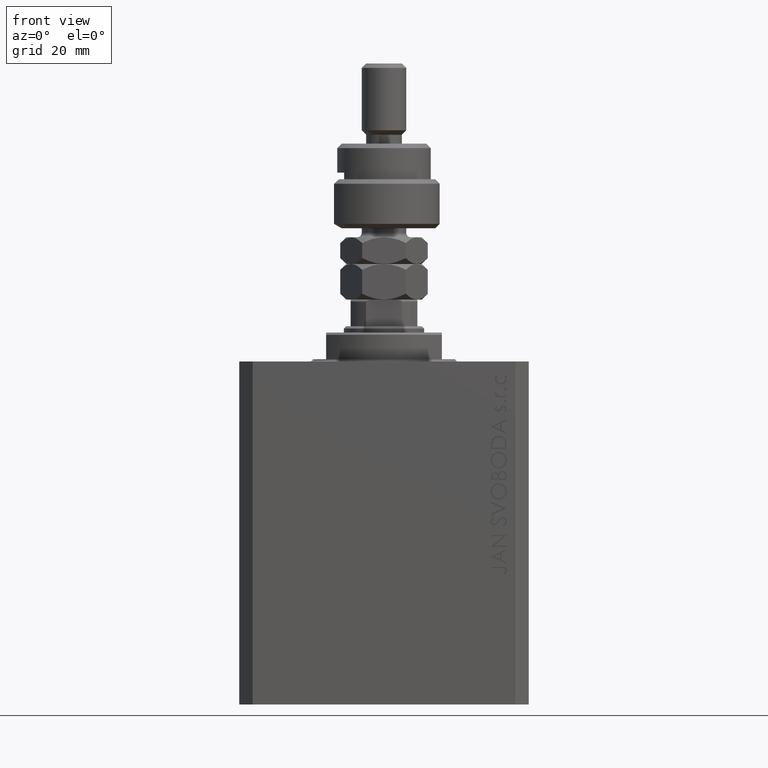
[diagram: clean part render]
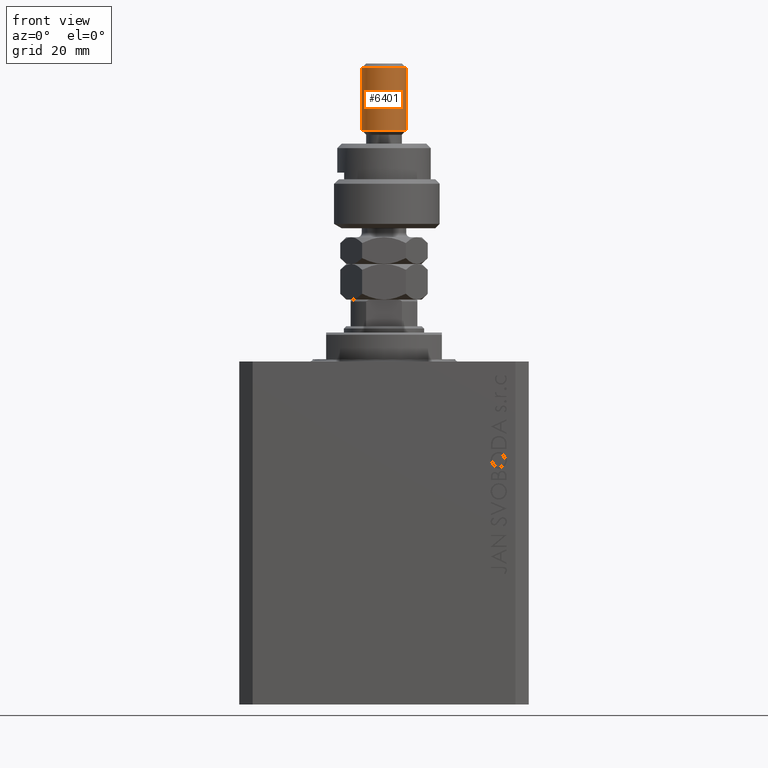
[diagram: same view with one face highlighted and labeled with its STEP entity id]
A machine part, front view. The second image highlights one B-rep face of the part: STEP entity #6401.
In plain terms, the highlighted cylindrical surface (edge-blend (fillet) strip) has radius 5 mm, axis along (-0, -0, -1).
Its self-contained STEP definition (entity closure, byte-faithful):
#632 = DIRECTION ( 'NONE',  ( -0.000000000000000000, -0.000000000000000000, -1.000000000000000000 ) ) ;
#1001 = VERTEX_POINT ( 'NONE', #38423 ) ;
#1084 = AXIS2_PLACEMENT_3D ( 'NONE', #13417, #12702, #17266 ) ;
#2642 = CARTESIAN_POINT ( 'NONE',  ( 5.000000000000000888, 6.123233995736767268E-16, 21.99999999999999289 ) ) ;
#5433 = EDGE_CURVE ( 'NONE', #1001, #35486, #7137, .T. ) ;
#5866 = ORIENTED_EDGE ( 'NONE', *, *, #5433, .F. ) ;
#6397 = AXIS2_PLACEMENT_3D ( 'NONE', #44346, #632, #11695 ) ;
#6401 = ADVANCED_FACE ( 'NONE', ( #11226 ), #30206, .T. ) ;
#6890 = CARTESIAN_POINT ( 'NONE',  ( 5.000000000000000888, 6.123233995736767268E-16, 37.00000000000000000 ) ) ;
#7137 = LINE ( 'NONE', #6890, #36258 ) ;
#8054 = DIRECTION ( 'NONE',  ( 0.000000000000000000, 0.000000000000000000, -1.000000000000000000 ) ) ;
#11226 = FACE_OUTER_BOUND ( 'NONE', #32481, .T. ) ;
#11695 = DIRECTION ( 'NONE',  ( -1.000000000000000000, 0.000000000000000000, 0.000000000000000000 ) ) ;
#12702 = DIRECTION ( 'NONE',  ( -0.000000000000000000, -0.000000000000000000, 1.000000000000000000 ) ) ;
#13417 = CARTESIAN_POINT ( 'NONE',  ( 0.000000000000000000, 0.000000000000000000, 21.99999999999999289 ) ) ;
#14116 = CIRCLE ( 'NONE', #1084, 5.000000000000000888 ) ;
#16678 = VERTEX_POINT ( 'NONE', #19242 ) ;
#17252 = DIRECTION ( 'NONE',  ( -0.000000000000000000, -0.000000000000000000, -1.000000000000000000 ) ) ;
#17266 = DIRECTION ( 'NONE',  ( 1.000000000000000000, 0.000000000000000000, 0.000000000000000000 ) ) ;
#17532 = ORIENTED_EDGE ( 'NONE', *, *, #46932, .T. ) ;
#18082 = EDGE_CURVE ( 'NONE', #16678, #35486, #14116, .T. ) ;
#19096 = DIRECTION ( 'NONE',  ( 1.000000000000000000, 0.000000000000000000, 0.000000000000000000 ) ) ;
#19242 = CARTESIAN_POINT ( 'NONE',  ( -5.000000000000000888, 0.000000000000000000, 21.99999999999999289 ) ) ;
#19420 = CARTESIAN_POINT ( 'NONE',  ( -5.000000000000000888, 0.000000000000000000, 36.00000000000000711 ) ) ;
#25527 = ORIENTED_EDGE ( 'NONE', *, *, #18082, .T. ) ;
#25633 = CARTESIAN_POINT ( 'NONE',  ( -5.000000000000000888, 0.000000000000000000, 37.00000000000000000 ) ) ;
#26864 = ORIENTED_EDGE ( 'NONE', *, *, #42803, .T. ) ;
#29246 = VECTOR ( 'NONE', #36667, 1000.000000000000000 ) ;
#30206 = CYLINDRICAL_SURFACE ( 'NONE', #6397, 5.000000000000000888 ) ;
#32386 = CIRCLE ( 'NONE', #40797, 5.000000000000000888 ) ;
#32481 = EDGE_LOOP ( 'NONE', ( #5866, #26864, #17532, #25527 ) ) ;
#35486 = VERTEX_POINT ( 'NONE', #2642 ) ;
#36258 = VECTOR ( 'NONE', #17252, 1000.000000000000000 ) ;
#36667 = DIRECTION ( 'NONE',  ( -0.000000000000000000, -0.000000000000000000, -1.000000000000000000 ) ) ;
#38423 = CARTESIAN_POINT ( 'NONE',  ( 5.000000000000000888, 6.123233995736767268E-16, 36.00000000000000711 ) ) ;
#40797 = AXIS2_PLACEMENT_3D ( 'NONE', #44546, #8054, #19096 ) ;
#42803 = EDGE_CURVE ( 'NONE', #1001, #46573, #32386, .T. ) ;
#44093 = LINE ( 'NONE', #25633, #29246 ) ;
#44346 = CARTESIAN_POINT ( 'NONE',  ( 0.000000000000000000, 0.000000000000000000, 37.00000000000000000 ) ) ;
#44546 = CARTESIAN_POINT ( 'NONE',  ( 0.000000000000000000, 0.000000000000000000, 36.00000000000000711 ) ) ;
#46573 = VERTEX_POINT ( 'NONE', #19420 ) ;
#46932 = EDGE_CURVE ( 'NONE', #46573, #16678, #44093, .T. ) ;